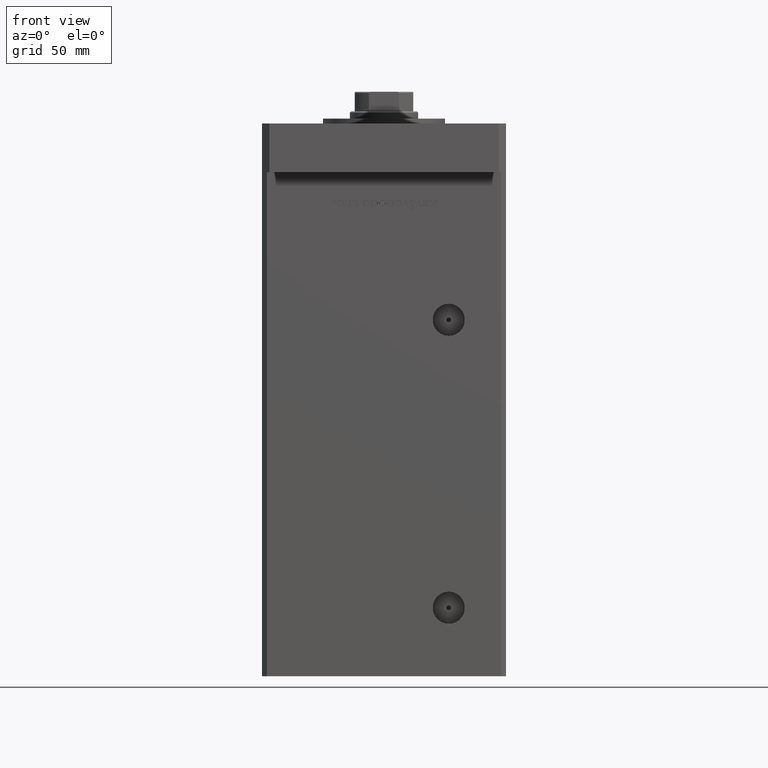
[diagram: clean part render]
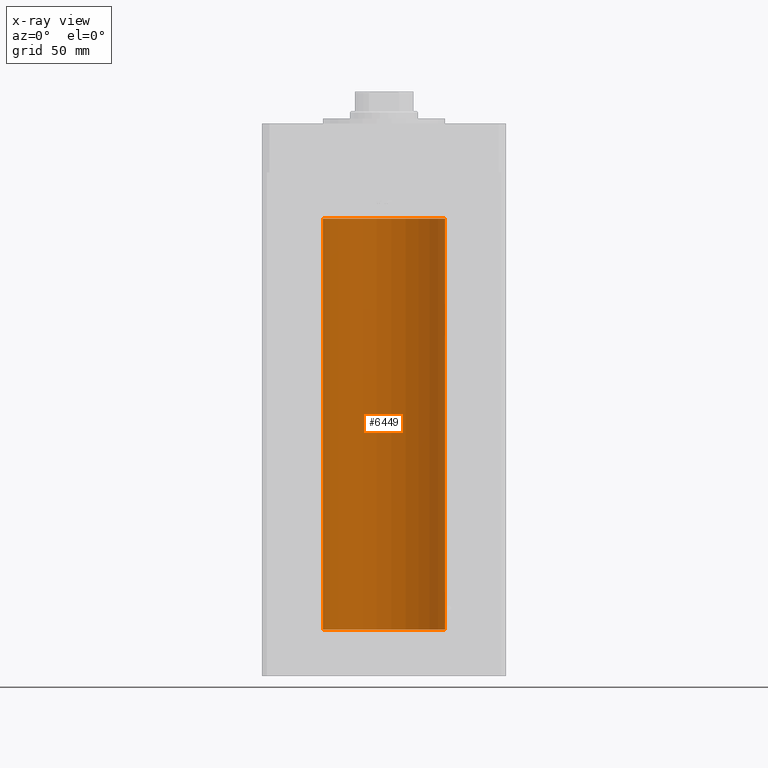
[diagram: x-ray — body ghosted, one internal face saturated and labeled with its STEP entity id]
A machine part, front view, then the same camera in x-ray: the body is ghosted and one INTERNAL B-rep face — a face not visible from any outside direction — is saturated and labeled: STEP entity #6449.
In plain terms, the highlighted cylindrical surface (partial cylindrical patch) has radius 25 mm, axis along (-0, -0, -1).
Its self-contained STEP definition (entity closure, byte-faithful):
#1032 = VECTOR ( 'NONE', #25297, 1000.000000000000000 ) ;
#1570 = DIRECTION ( 'NONE',  ( -0.000000000000000000, -0.000000000000000000, -1.000000000000000000 ) ) ;
#1787 = EDGE_LOOP ( 'NONE', ( #48597, #9411, #18406, #33695 ) ) ;
#5854 = VERTEX_POINT ( 'NONE', #44170 ) ;
#5899 = DIRECTION ( 'NONE',  ( 1.000000000000000000, 0.000000000000000000, 0.000000000000000000 ) ) ;
#6022 = EDGE_CURVE ( 'NONE', #5854, #7775, #17930, .T. ) ;
#6449 = ADVANCED_FACE ( 'NONE', ( #6940 ), #53032, .F. ) ;
#6663 = DIRECTION ( 'NONE',  ( -0.000000000000000000, -0.000000000000000000, -1.000000000000000000 ) ) ;
#6940 = FACE_OUTER_BOUND ( 'NONE', #1787, .T. ) ;
#7775 = VERTEX_POINT ( 'NONE', #23328 ) ;
#9411 = ORIENTED_EDGE ( 'NONE', *, *, #6022, .T. ) ;
#16550 = LINE ( 'NONE', #38376, #1032 ) ;
#17930 = CIRCLE ( 'NONE', #40577, 25.00000000000000000 ) ;
#18406 = ORIENTED_EDGE ( 'NONE', *, *, #29184, .T. ) ;
#19211 = DIRECTION ( 'NONE',  ( -1.000000000000000000, 0.000000000000000000, 0.000000000000000000 ) ) ;
#22014 = CARTESIAN_POINT ( 'NONE',  ( 25.00000000000000000, 3.061616997868383043E-15, 168.5000000000000000 ) ) ;
#22551 = EDGE_CURVE ( 'NONE', #47307, #39791, #33920, .T. ) ;
#23328 = CARTESIAN_POINT ( 'NONE',  ( -25.00000000000000000, 0.000000000000000000, 168.5000000000000000 ) ) ;
#23547 = EDGE_CURVE ( 'NONE', #5854, #47307, #51467, .T. ) ;
#25297 = DIRECTION ( 'NONE',  ( -0.000000000000000000, -0.000000000000000000, -1.000000000000000000 ) ) ;
#28734 = VECTOR ( 'NONE', #1570, 1000.000000000000000 ) ;
#29184 = EDGE_CURVE ( 'NONE', #7775, #39791, #16550, .T. ) ;
#29579 = CARTESIAN_POINT ( 'NONE',  ( 25.00000000000000000, 3.061616997868383043E-15, 0.000000000000000000 ) ) ;
#31293 = AXIS2_PLACEMENT_3D ( 'NONE', #39432, #43272, #5899 ) ;
#33218 = DIRECTION ( 'NONE',  ( -0.000000000000000000, 0.000000000000000000, 1.000000000000000000 ) ) ;
#33695 = ORIENTED_EDGE ( 'NONE', *, *, #22551, .F. ) ;
#33920 = CIRCLE ( 'NONE', #31293, 25.00000000000000000 ) ;
#36384 = CARTESIAN_POINT ( 'NONE',  ( 0.000000000000000000, 0.000000000000000000, 168.5000000000000000 ) ) ;
#38145 = CARTESIAN_POINT ( 'NONE',  ( 0.000000000000000000, 0.000000000000000000, 168.5000000000000000 ) ) ;
#38376 = CARTESIAN_POINT ( 'NONE',  ( -25.00000000000000000, 0.000000000000000000, 168.5000000000000000 ) ) ;
#39432 = CARTESIAN_POINT ( 'NONE',  ( 0.000000000000000000, 0.000000000000000000, 0.000000000000000000 ) ) ;
#39791 = VERTEX_POINT ( 'NONE', #42733 ) ;
#40577 = AXIS2_PLACEMENT_3D ( 'NONE', #38145, #33218, #49873 ) ;
#42733 = CARTESIAN_POINT ( 'NONE',  ( -25.00000000000000000, 0.000000000000000000, 0.000000000000000000 ) ) ;
#43272 = DIRECTION ( 'NONE',  ( -0.000000000000000000, 0.000000000000000000, 1.000000000000000000 ) ) ;
#44170 = CARTESIAN_POINT ( 'NONE',  ( 25.00000000000000000, 3.061616997868383043E-15, 168.5000000000000000 ) ) ;
#47307 = VERTEX_POINT ( 'NONE', #29579 ) ;
#48597 = ORIENTED_EDGE ( 'NONE', *, *, #23547, .F. ) ;
#49873 = DIRECTION ( 'NONE',  ( 1.000000000000000000, 0.000000000000000000, 0.000000000000000000 ) ) ;
#51076 = AXIS2_PLACEMENT_3D ( 'NONE', #36384, #6663, #19211 ) ;
#51467 = LINE ( 'NONE', #22014, #28734 ) ;
#53032 = CYLINDRICAL_SURFACE ( 'NONE', #51076, 25.00000000000000000 ) ;